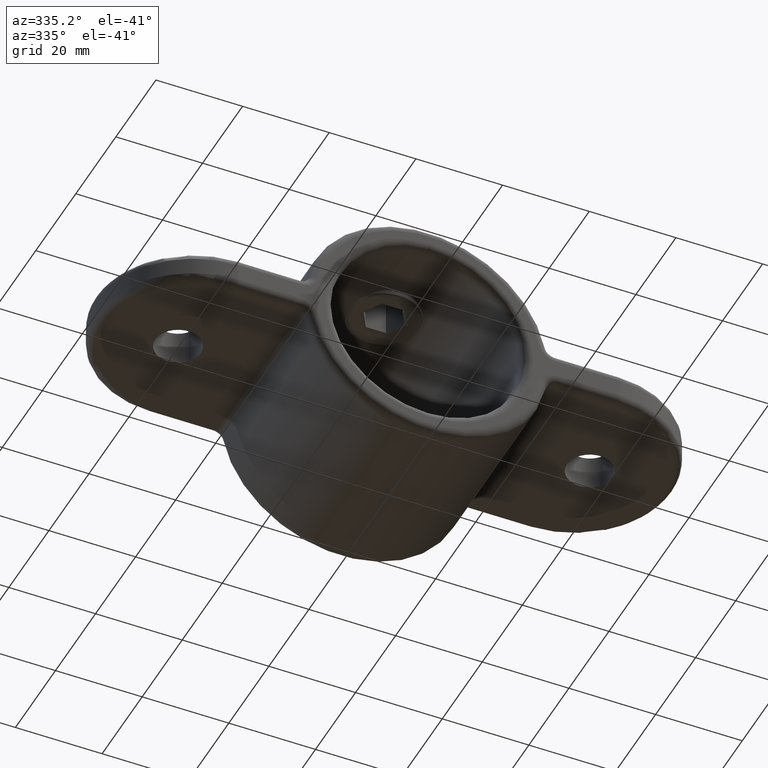
[diagram: clean part render]
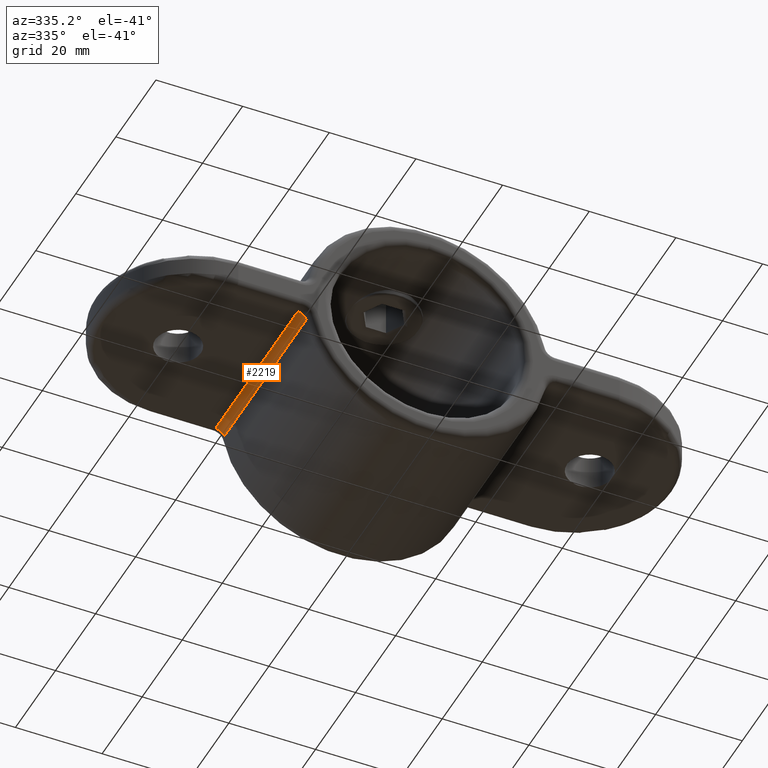
[diagram: same view with one face highlighted and labeled with its STEP entity id]
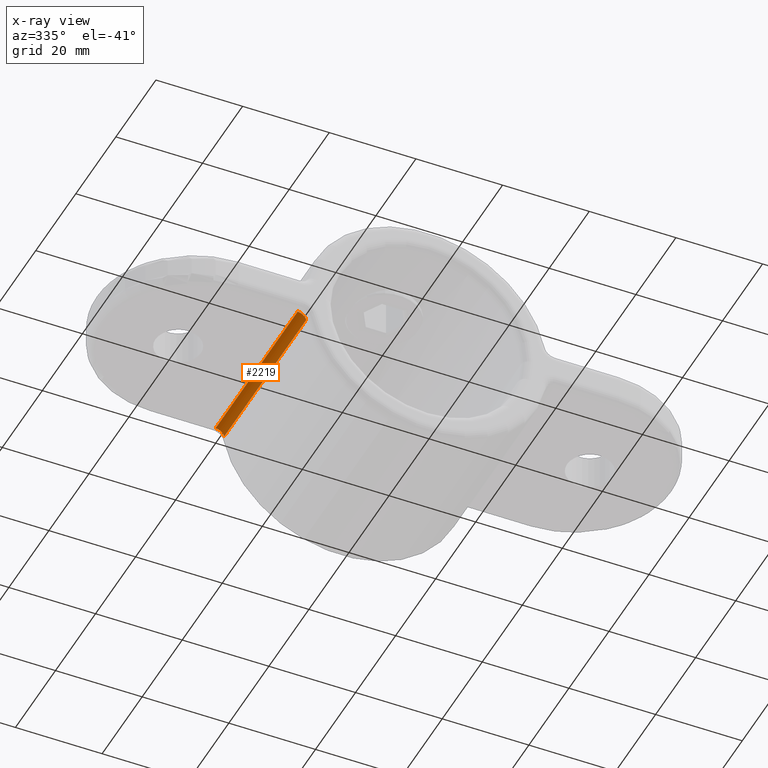
[diagram: x-ray of the same camera — body ghosted, the highlighted face saturated]
A machine part, auxiliary view. The second image highlights one B-rep face of the part: STEP entity #2219.
The next image is the same camera in x-ray: the body ghosted, the highlighted face saturated — about 0% of this face is hidden behind the body in this view.
In plain terms, the highlighted cylindrical surface (edge-blend (fillet) strip) has radius 2 mm, axis along (-0, -1, -0).
Its self-contained STEP definition (entity closure, byte-faithful):
#24 = CARTESIAN_POINT ( 'NONE',  ( -29.39387691339813458, 43.00000000000000000, -4.000000000000000000 ) ) ;
#34 = FACE_OUTER_BOUND ( 'NONE', #1639, .T. ) ;
#58 = CARTESIAN_POINT ( 'NONE',  ( -29.39387691339813458, 2.000000000000008882, -6.000000000000000000 ) ) ;
#85 = CIRCLE ( 'NONE', #1953, 2.000000000000000000 ) ;
#272 = EDGE_CURVE ( 'NONE', #881, #1745, #923, .T. ) ;
#378 = DIRECTION ( 'NONE',  ( -0.000000000000000000, -1.000000000000000000, -0.000000000000000000 ) ) ;
#404 = DIRECTION ( 'NONE',  ( -0.000000000000000000, -1.000000000000000000, 0.000000000000000000 ) ) ;
#427 = EDGE_CURVE ( 'NONE', #1575, #1741, #2851, .T. ) ;
#595 = CARTESIAN_POINT ( 'NONE',  ( -29.39387691339813458, 2.000000000000000000, -4.000000000000000000 ) ) ;
#651 = DIRECTION ( 'NONE',  ( 0.000000000000000000, 1.000000000000000000, 0.000000000000000000 ) ) ;
#881 = VERTEX_POINT ( 'NONE', #24 ) ;
#923 = LINE ( 'NONE', #2369, #2459 ) ;
#932 = DIRECTION ( 'NONE',  ( 0.000000000000000000, 0.000000000000000000, 1.000000000000000000 ) ) ;
#1028 = EDGE_CURVE ( 'NONE', #881, #1741, #85, .T. ) ;
#1111 = DIRECTION ( 'NONE',  ( 0.000000000000000000, 0.000000000000000000, 1.000000000000000000 ) ) ;
#1286 = CARTESIAN_POINT ( 'NONE',  ( -27.43428511917159085, 45.00000000000000000, -5.600000000000000533 ) ) ;
#1399 = AXIS2_PLACEMENT_3D ( 'NONE', #58, #2725, #932 ) ;
#1575 = VERTEX_POINT ( 'NONE', #1843 ) ;
#1577 = AXIS2_PLACEMENT_3D ( 'NONE', #2370, #378, #2376 ) ;
#1639 = EDGE_LOOP ( 'NONE', ( #2742, #2723, #1925, #1994 ) ) ;
#1741 = VERTEX_POINT ( 'NONE', #2339 ) ;
#1745 = VERTEX_POINT ( 'NONE', #595 ) ;
#1843 = CARTESIAN_POINT ( 'NONE',  ( -27.43428511917159085, 2.000000000000000888, -5.600000000000000533 ) ) ;
#1925 = ORIENTED_EDGE ( 'NONE', *, *, #2086, .F. ) ;
#1953 = AXIS2_PLACEMENT_3D ( 'NONE', #2696, #2457, #1111 ) ;
#1994 = ORIENTED_EDGE ( 'NONE', *, *, #272, .F. ) ;
#2045 = VECTOR ( 'NONE', #651, 1000.000000000000000 ) ;
#2074 = CYLINDRICAL_SURFACE ( 'NONE', #1577, 2.000000000000000000 ) ;
#2086 = EDGE_CURVE ( 'NONE', #1745, #1575, #2283, .T. ) ;
#2219 = ADVANCED_FACE ( 'NONE', ( #34 ), #2074, .F. ) ;
#2283 = CIRCLE ( 'NONE', #1399, 2.000000000000000000 ) ;
#2339 = CARTESIAN_POINT ( 'NONE',  ( -27.43428511917159085, 43.00000000000000000, -5.600000000000000533 ) ) ;
#2369 = CARTESIAN_POINT ( 'NONE',  ( -29.39387691339813458, 1.387778780781445676E-14, -4.000000000000000000 ) ) ;
#2370 = CARTESIAN_POINT ( 'NONE',  ( -29.39387691339813458, 45.00000000000000000, -6.000000000000000000 ) ) ;
#2376 = DIRECTION ( 'NONE',  ( 0.000000000000000000, 0.000000000000000000, -1.000000000000000000 ) ) ;
#2457 = DIRECTION ( 'NONE',  ( 0.000000000000000000, 1.000000000000000000, 0.000000000000000000 ) ) ;
#2459 = VECTOR ( 'NONE', #404, 1000.000000000000000 ) ;
#2696 = CARTESIAN_POINT ( 'NONE',  ( -29.39387691339813458, 43.00000000000000000, -6.000000000000000000 ) ) ;
#2723 = ORIENTED_EDGE ( 'NONE', *, *, #427, .F. ) ;
#2725 = DIRECTION ( 'NONE',  ( 0.000000000000000000, 1.000000000000000000, 0.000000000000000000 ) ) ;
#2742 = ORIENTED_EDGE ( 'NONE', *, *, #1028, .T. ) ;
#2851 = LINE ( 'NONE', #1286, #2045 ) ;